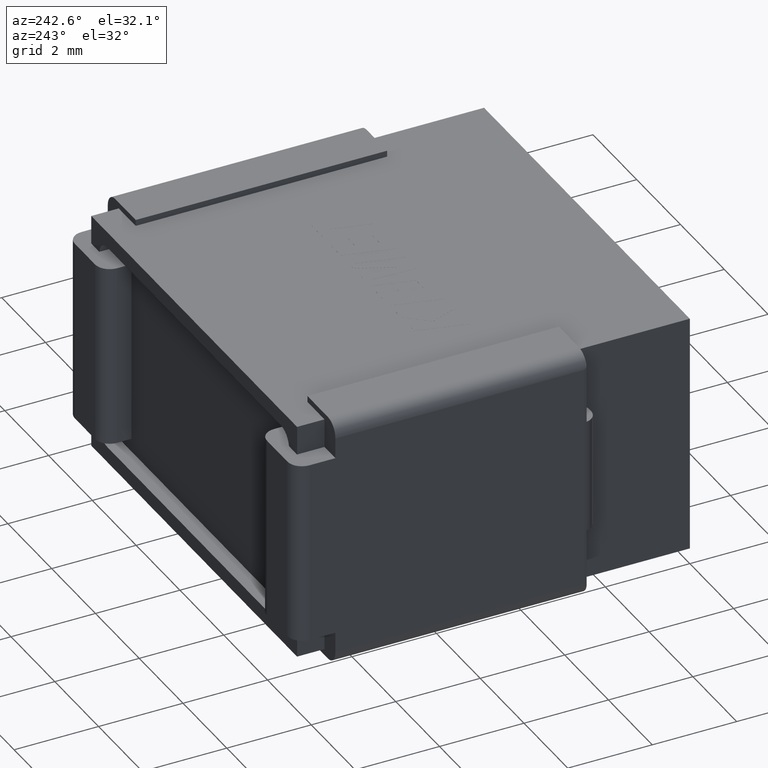
[diagram: clean part render]
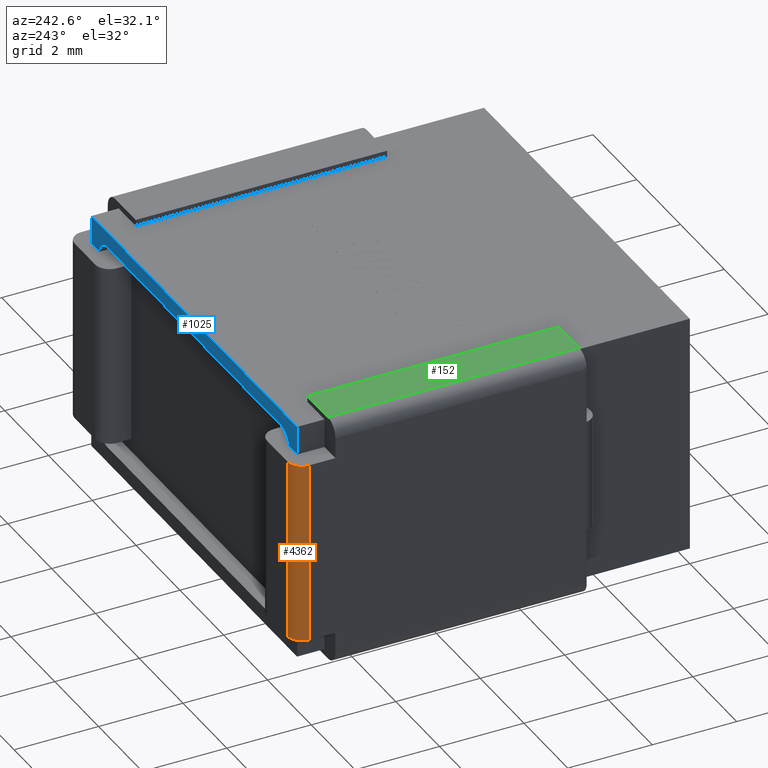
[diagram: same view with three faces highlighted in distinct colors, each labeled with its STEP entity id]
A machine part, auxiliary view with three faces highlighted in distinct colors.
Their STEP definitions:

[orange] entity #4362 — the highlighted cylindrical surface (edge-blend (fillet) strip) has radius 0.342 mm, axis along (0, 0, 1).
#9 = CARTESIAN_POINT ( 'NONE',  ( -0.1580000000000070792, 9.611140200761148833, -5.016000000000000014 ) ) ;
#62 = CIRCLE ( 'NONE', #1034, 0.3419999999999999707 ) ;
#94 = AXIS2_PLACEMENT_3D ( 'NONE', #385, #3226, #1469 ) ;
#231 = CARTESIAN_POINT ( 'NONE',  ( -0.1580000000000070792, 9.269140200761148307, -0.6840000000000001634 ) ) ;
#237 = ORIENTED_EDGE ( 'NONE', *, *, #2297, .T. ) ;
#385 = CARTESIAN_POINT ( 'NONE',  ( -0.1580000000000070792, 9.269140200761148307, -0.6840000000000001634 ) ) ;
#431 = CARTESIAN_POINT ( 'NONE',  ( -0.5000000000000073275, 9.269140200761148307, -0.6840000000000001634 ) ) ;
#599 = DIRECTION ( 'NONE',  ( -1.000000000000000000, 0.000000000000000000, 0.000000000000000000 ) ) ;
#661 = EDGE_CURVE ( 'NONE', #695, #4522, #3951, .T. ) ;
#695 = VERTEX_POINT ( 'NONE', #837 ) ;
#833 = DIRECTION ( 'NONE',  ( -1.000000000000000000, -5.072290865429261100E-15, 0.000000000000000000 ) ) ;
#837 = CARTESIAN_POINT ( 'NONE',  ( -0.5000000000000073275, 9.269140200761148307, -5.016000000000000014 ) ) ;
#928 = FACE_OUTER_BOUND ( 'NONE', #4063, .T. ) ;
#1034 = AXIS2_PLACEMENT_3D ( 'NONE', #2245, #2604, #833 ) ;
#1053 = DIRECTION ( 'NONE',  ( -0.000000000000000000, -0.000000000000000000, -1.000000000000000000 ) ) ;
#1469 = DIRECTION ( 'NONE',  ( -1.000000000000000000, 0.000000000000000000, 0.000000000000000000 ) ) ;
#1681 = CYLINDRICAL_SURFACE ( 'NONE', #4306, 0.3419999999999999707 ) ;
#1990 = VECTOR ( 'NONE', #2437, 1000.000000000000000 ) ;
#2187 = CARTESIAN_POINT ( 'NONE',  ( -0.5000000000000073275, 9.269140200761148307, -0.6840000000000001634 ) ) ;
#2245 = CARTESIAN_POINT ( 'NONE',  ( -0.1580000000000070792, 9.269140200761148307, -5.016000000000000014 ) ) ;
#2246 = ORIENTED_EDGE ( 'NONE', *, *, #4050, .T. ) ;
#2297 = EDGE_CURVE ( 'NONE', #4522, #3377, #2997, .T. ) ;
#2437 = DIRECTION ( 'NONE',  ( 0.000000000000000000, 0.000000000000000000, 1.000000000000000000 ) ) ;
#2604 = DIRECTION ( 'NONE',  ( 0.000000000000000000, 0.000000000000000000, 1.000000000000000000 ) ) ;
#2997 = CIRCLE ( 'NONE', #94, 0.3419999999999999707 ) ;
#3018 = DIRECTION ( 'NONE',  ( 0.000000000000000000, 0.000000000000000000, 1.000000000000000000 ) ) ;
#3226 = DIRECTION ( 'NONE',  ( -0.000000000000000000, -0.000000000000000000, -1.000000000000000000 ) ) ;
#3377 = VERTEX_POINT ( 'NONE', #4213 ) ;
#3514 = ORIENTED_EDGE ( 'NONE', *, *, #4193, .T. ) ;
#3853 = LINE ( 'NONE', #3897, #3934 ) ;
#3897 = CARTESIAN_POINT ( 'NONE',  ( -0.1580000000000070792, 9.611140200761148833, -5.016000000000000014 ) ) ;
#3934 = VECTOR ( 'NONE', #1053, 1000.000000000000000 ) ;
#3951 = LINE ( 'NONE', #2187, #1990 ) ;
#4042 = VERTEX_POINT ( 'NONE', #9 ) ;
#4050 = EDGE_CURVE ( 'NONE', #3377, #4042, #3853, .T. ) ;
#4063 = EDGE_LOOP ( 'NONE', ( #3514, #4266, #237, #2246 ) ) ;
#4193 = EDGE_CURVE ( 'NONE', #4042, #695, #62, .T. ) ;
#4213 = CARTESIAN_POINT ( 'NONE',  ( -0.1580000000000070792, 9.611140200761148833, -0.6840000000000001634 ) ) ;
#4266 = ORIENTED_EDGE ( 'NONE', *, *, #661, .T. ) ;
#4306 = AXIS2_PLACEMENT_3D ( 'NONE', #231, #3018, #599 ) ;
#4362 = ADVANCED_FACE ( 'NONE', ( #928 ), #1681, .T. ) ;
#4522 = VERTEX_POINT ( 'NONE', #431 ) ;

[blue] entity #1025 — the highlighted planar face has unit normal (0, 1, 0).
#103 = PLANE ( 'NONE',  #4120 ) ;
#186 = CARTESIAN_POINT ( 'NONE',  ( 9.399999999999998579, 9.300000000000000711, -0.6840000000000001634 ) ) ;
#241 = DIRECTION ( 'NONE',  ( -0.000000000000000000, -1.000000000000000000, -0.000000000000000000 ) ) ;
#249 = DIRECTION ( 'NONE',  ( 0.000000000000000000, 0.000000000000000000, 1.000000000000000000 ) ) ;
#256 = VECTOR ( 'NONE', #2183, 1000.000000000000000 ) ;
#296 = LINE ( 'NONE', #3434, #728 ) ;
#533 = EDGE_CURVE ( 'NONE', #2385, #552, #562, .T. ) ;
#552 = VERTEX_POINT ( 'NONE', #1623 ) ;
#553 = CARTESIAN_POINT ( 'NONE',  ( 0.7298245614035072659, 9.300000000000000711, -0.3720000000000000528 ) ) ;
#562 = LINE ( 'NONE', #2075, #3162 ) ;
#575 = EDGE_CURVE ( 'NONE', #4238, #4361, #3519, .T. ) ;
#608 = DIRECTION ( 'NONE',  ( -0.000000000000000000, -1.000000000000000000, -0.000000000000000000 ) ) ;
#687 = DIRECTION ( 'NONE',  ( -1.000000000000000000, -6.938893903907228378E-16, 0.000000000000000000 ) ) ;
#700 = AXIS2_PLACEMENT_3D ( 'NONE', #3427, #241, #1672 ) ;
#701 = CARTESIAN_POINT ( 'NONE',  ( 8.670175438596491091, 9.300000000000000711, -0.3720000000000000528 ) ) ;
#728 = VECTOR ( 'NONE', #249, 1000.000000000000000 ) ;
#746 = CARTESIAN_POINT ( 'NONE',  ( 9.399999999999998579, 9.300000000000000711, -5.700000000000000178 ) ) ;
#761 = ORIENTED_EDGE ( 'NONE', *, *, #1775, .F. ) ;
#827 = CARTESIAN_POINT ( 'NONE',  ( -1.951563910473907981E-15, 9.300000000000000711, -0.6840000000000006075 ) ) ;
#892 = VERTEX_POINT ( 'NONE', #3831 ) ;
#939 = CARTESIAN_POINT ( 'NONE',  ( 0.7298245614035072659, 9.300000000000000711, -0.7369122807017544075 ) ) ;
#1025 = ADVANCED_FACE ( 'NONE', ( #3675 ), #103, .T. ) ;
#1057 = LINE ( 'NONE', #1732, #256 ) ;
#1383 = ORIENTED_EDGE ( 'NONE', *, *, #3438, .T. ) ;
#1420 = EDGE_LOOP ( 'NONE', ( #1383, #2617, #3881, #3049, #3684, #4251, #761, #2288 ) ) ;
#1436 = EDGE_CURVE ( 'NONE', #4238, #1856, #2998, .T. ) ;
#1623 = CARTESIAN_POINT ( 'NONE',  ( -1.951563910473907981E-15, 9.300000000000000711, 0.000000000000000000 ) ) ;
#1672 = DIRECTION ( 'NONE',  ( -4.753809525513366141E-15, 0.000000000000000000, 1.000000000000000000 ) ) ;
#1732 = CARTESIAN_POINT ( 'NONE',  ( 0.3649122807017528558, 9.300000000000000711, -0.3720000000000000528 ) ) ;
#1775 = EDGE_CURVE ( 'NONE', #2918, #1856, #1057, .T. ) ;
#1852 = EDGE_CURVE ( 'NONE', #4361, #2385, #4295, .T. ) ;
#1856 = VERTEX_POINT ( 'NONE', #701 ) ;
#1899 = VECTOR ( 'NONE', #2093, 1000.000000000000000 ) ;
#1912 = CARTESIAN_POINT ( 'NONE',  ( 9.031231200436536710, 9.300000000000000711, -0.6840000000000001634 ) ) ;
#1933 = DIRECTION ( 'NONE',  ( 0.000000000000000000, 1.000000000000000000, 0.000000000000000000 ) ) ;
#1995 = AXIS2_PLACEMENT_3D ( 'NONE', #939, #608, #2373 ) ;
#2075 = CARTESIAN_POINT ( 'NONE',  ( -1.951563910473907981E-15, 9.300000000000000711, 0.000000000000000000 ) ) ;
#2093 = DIRECTION ( 'NONE',  ( 0.000000000000000000, 0.000000000000000000, 1.000000000000000000 ) ) ;
#2159 = VECTOR ( 'NONE', #687, 1000.000000000000000 ) ;
#2183 = DIRECTION ( 'NONE',  ( 1.000000000000000000, 0.000000000000000000, 0.000000000000000000 ) ) ;
#2242 = DIRECTION ( 'NONE',  ( 0.000000000000000000, -0.000000000000000000, 1.000000000000000000 ) ) ;
#2288 = ORIENTED_EDGE ( 'NONE', *, *, #2681, .T. ) ;
#2373 = DIRECTION ( 'NONE',  ( 0.000000000000000000, 0.000000000000000000, 1.000000000000000000 ) ) ;
#2385 = VERTEX_POINT ( 'NONE', #2697 ) ;
#2617 = ORIENTED_EDGE ( 'NONE', *, *, #3336, .T. ) ;
#2681 = EDGE_CURVE ( 'NONE', #2918, #892, #4502, .T. ) ;
#2697 = CARTESIAN_POINT ( 'NONE',  ( 9.399999999999998579, 9.300000000000000711, 0.000000000000000000 ) ) ;
#2753 = DIRECTION ( 'NONE',  ( -1.000000000000000000, -0.000000000000000000, -0.000000000000000000 ) ) ;
#2804 = DIRECTION ( 'NONE',  ( 1.000000000000000000, -0.000000000000000000, 0.000000000000000000 ) ) ;
#2918 = VERTEX_POINT ( 'NONE', #553 ) ;
#2998 = CIRCLE ( 'NONE', #700, 0.3649122807017543546 ) ;
#3049 = ORIENTED_EDGE ( 'NONE', *, *, #1852, .F. ) ;
#3156 = LINE ( 'NONE', #3893, #2159 ) ;
#3162 = VECTOR ( 'NONE', #2753, 1000.000000000000000 ) ;
#3336 = EDGE_CURVE ( 'NONE', #4511, #552, #296, .T. ) ;
#3387 = VECTOR ( 'NONE', #2804, 1000.000000000000000 ) ;
#3427 = CARTESIAN_POINT ( 'NONE',  ( 8.670175438596491091, 9.300000000000000711, -0.7369122807017545185 ) ) ;
#3434 = CARTESIAN_POINT ( 'NONE',  ( -1.951563910473907981E-15, 9.300000000000000711, -5.700000000000000178 ) ) ;
#3438 = EDGE_CURVE ( 'NONE', #892, #4511, #3156, .T. ) ;
#3519 = LINE ( 'NONE', #3908, #3387 ) ;
#3675 = FACE_OUTER_BOUND ( 'NONE', #1420, .T. ) ;
#3684 = ORIENTED_EDGE ( 'NONE', *, *, #575, .F. ) ;
#3831 = CARTESIAN_POINT ( 'NONE',  ( 0.3687687995634630345, 9.300000000000000711, -0.6840000000000001634 ) ) ;
#3881 = ORIENTED_EDGE ( 'NONE', *, *, #533, .F. ) ;
#3893 = CARTESIAN_POINT ( 'NONE',  ( 9.399999999999993250, 9.300000000000004263, -0.6840000000000006075 ) ) ;
#3908 = CARTESIAN_POINT ( 'NONE',  ( -1.951563910473907981E-15, 9.300000000000000711, -0.6840000000000006075 ) ) ;
#4048 = CARTESIAN_POINT ( 'NONE',  ( -1.951563910473907981E-15, 9.300000000000000711, -5.700000000000000178 ) ) ;
#4120 = AXIS2_PLACEMENT_3D ( 'NONE', #4048, #1933, #2242 ) ;
#4238 = VERTEX_POINT ( 'NONE', #1912 ) ;
#4251 = ORIENTED_EDGE ( 'NONE', *, *, #1436, .T. ) ;
#4295 = LINE ( 'NONE', #746, #1899 ) ;
#4361 = VERTEX_POINT ( 'NONE', #186 ) ;
#4502 = CIRCLE ( 'NONE', #1995, 0.3649122807017543546 ) ;
#4511 = VERTEX_POINT ( 'NONE', #827 ) ;

[green] entity #152 — the highlighted planar face has unit normal (0, 0, 1).
#13 = ORIENTED_EDGE ( 'NONE', *, *, #3433, .F. ) ;
#72 = DIRECTION ( 'NONE',  ( 6.938893903907228378E-16, -1.000000000000000000, 0.000000000000000000 ) ) ;
#152 = ADVANCED_FACE ( 'NONE', ( #4452 ), #4073, .T. ) ;
#155 = CARTESIAN_POINT ( 'NONE',  ( -0.5000000000000056621, 8.650989808689429239, 0.1455629377962413817 ) ) ;
#227 = EDGE_CURVE ( 'NONE', #3050, #2698, #2079, .T. ) ;
#294 = CARTESIAN_POINT ( 'NONE',  ( -0.5000000000000022204, 2.698989808689428394, 0.1455629377962413817 ) ) ;
#316 = CARTESIAN_POINT ( 'NONE',  ( -0.1580000000000053584, 8.650989808689429239, 0.1455629377962413262 ) ) ;
#666 = LINE ( 'NONE', #316, #3176 ) ;
#1317 = ORIENTED_EDGE ( 'NONE', *, *, #1606, .F. ) ;
#1446 = VECTOR ( 'NONE', #3864, 1000.000000000000000 ) ;
#1491 = EDGE_CURVE ( 'NONE', #3765, #2101, #2099, .T. ) ;
#1606 = EDGE_CURVE ( 'NONE', #2101, #2698, #3720, .T. ) ;
#1838 = ORIENTED_EDGE ( 'NONE', *, *, #227, .T. ) ;
#2079 = LINE ( 'NONE', #294, #3601 ) ;
#2099 = LINE ( 'NONE', #3148, #1446 ) ;
#2101 = VERTEX_POINT ( 'NONE', #3894 ) ;
#2139 = AXIS2_PLACEMENT_3D ( 'NONE', #155, #2933, #2653 ) ;
#2653 = DIRECTION ( 'NONE',  ( -1.000000000000000000, -6.938893903907228378E-16, 1.273341837191079864E-16 ) ) ;
#2698 = VERTEX_POINT ( 'NONE', #4160 ) ;
#2933 = DIRECTION ( 'NONE',  ( 1.273341837191079864E-16, 8.835583911675214839E-32, 1.000000000000000000 ) ) ;
#3050 = VERTEX_POINT ( 'NONE', #3921 ) ;
#3104 = DIRECTION ( 'NONE',  ( 1.000000000000000000, 6.938893903907228378E-16, -1.273341837191079864E-16 ) ) ;
#3148 = CARTESIAN_POINT ( 'NONE',  ( -0.5000000000000056621, 8.650989808689429239, 0.1455629377962413817 ) ) ;
#3176 = VECTOR ( 'NONE', #4235, 1000.000000000000000 ) ;
#3291 = ORIENTED_EDGE ( 'NONE', *, *, #1491, .F. ) ;
#3293 = EDGE_LOOP ( 'NONE', ( #1838, #1317, #3291, #13 ) ) ;
#3433 = EDGE_CURVE ( 'NONE', #3050, #3765, #666, .T. ) ;
#3601 = VECTOR ( 'NONE', #3104, 1000.000000000000000 ) ;
#3720 = LINE ( 'NONE', #4019, #4202 ) ;
#3765 = VERTEX_POINT ( 'NONE', #3906 ) ;
#3864 = DIRECTION ( 'NONE',  ( 1.000000000000000000, 6.938893903907228378E-16, -1.273341837191079864E-16 ) ) ;
#3894 = CARTESIAN_POINT ( 'NONE',  ( 0.7771929824561349953, 8.650989808689431015, 0.1455629377962412430 ) ) ;
#3906 = CARTESIAN_POINT ( 'NONE',  ( -0.1580000000000053584, 8.650989808689429239, 0.1455629377962413262 ) ) ;
#3921 = CARTESIAN_POINT ( 'NONE',  ( -0.1580000000000018889, 2.698989808689428838, 0.1455629377962413262 ) ) ;
#4019 = CARTESIAN_POINT ( 'NONE',  ( 0.7771929824561349953, 8.650989808689431015, 0.1455629377962412430 ) ) ;
#4073 = PLANE ( 'NONE',  #2139 ) ;
#4160 = CARTESIAN_POINT ( 'NONE',  ( 0.7771929824561384370, 2.698989808689429282, 0.1455629377962412430 ) ) ;
#4202 = VECTOR ( 'NONE', #72, 1000.000000000000000 ) ;
#4235 = DIRECTION ( 'NONE',  ( -6.938893903907228378E-16, 1.000000000000000000, -0.000000000000000000 ) ) ;
#4452 = FACE_OUTER_BOUND ( 'NONE', #3293, .T. ) ;